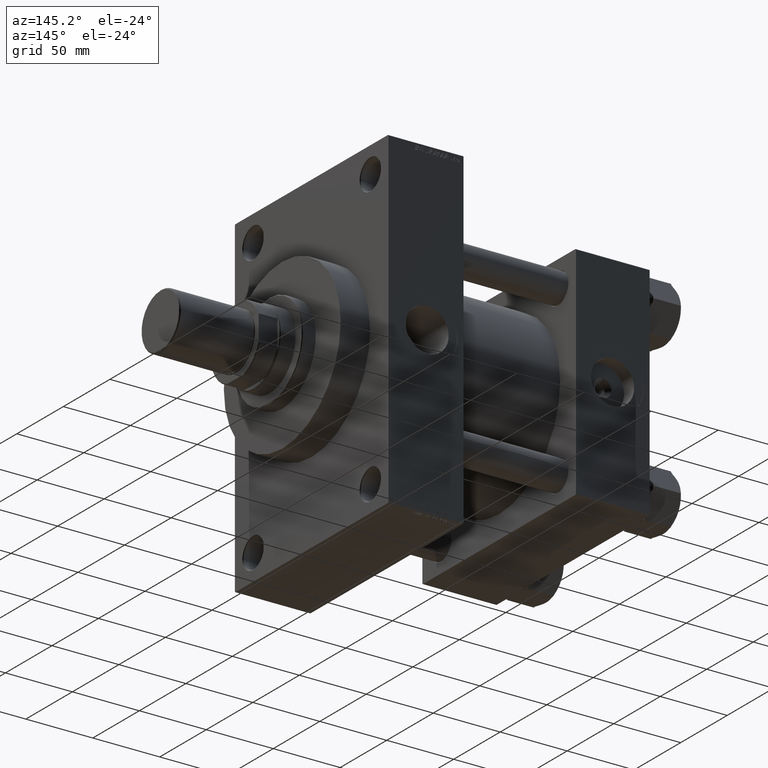
[diagram: clean part render]
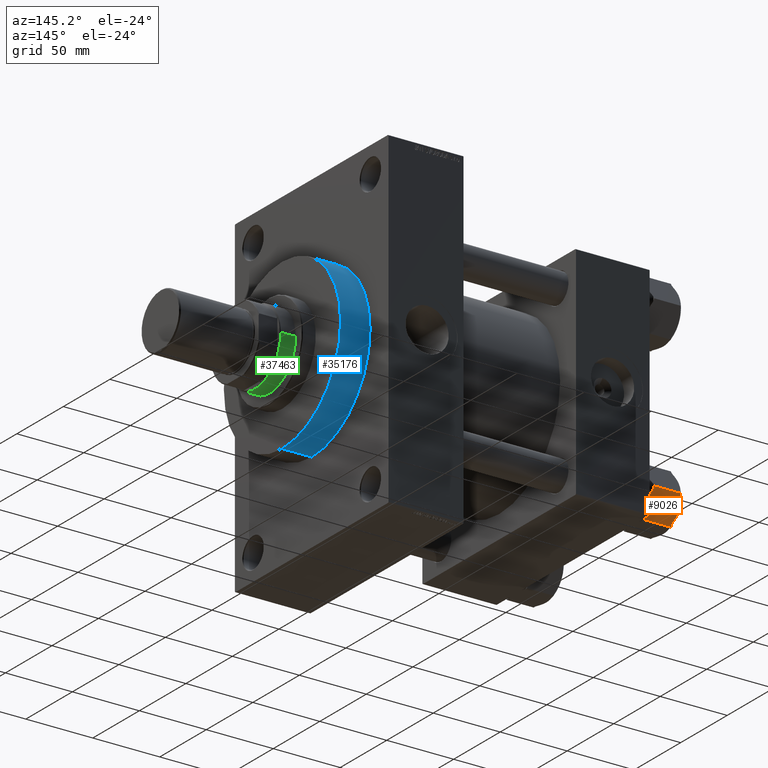
[diagram: same view with three faces highlighted in distinct colors, each labeled with its STEP entity id]
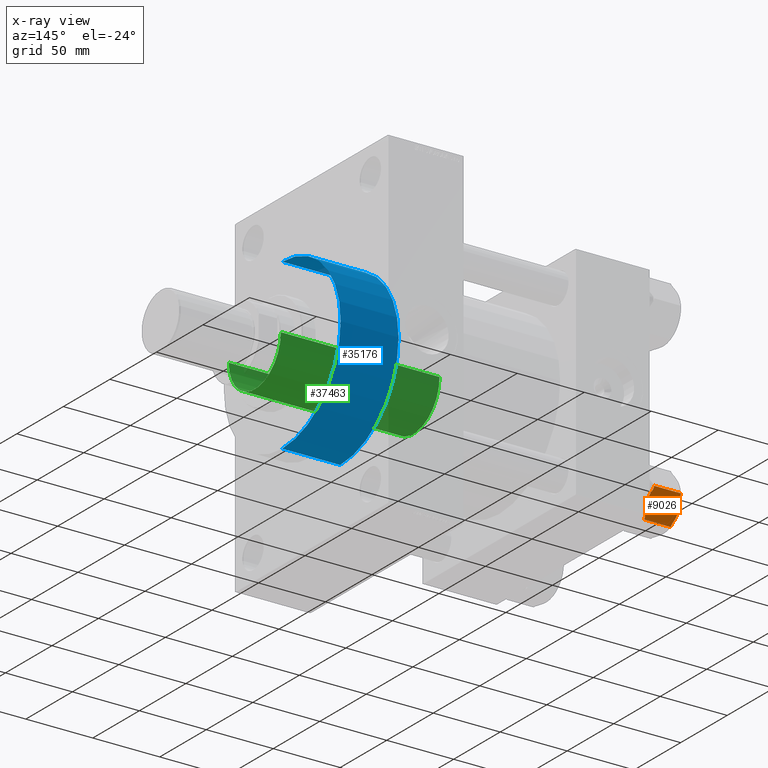
[diagram: x-ray of the same camera — body ghosted, the three highlighted faces saturated]
A machine part, auxiliary view with three faces highlighted in distinct colors.
The next image is the same camera in x-ray (body ghosted, the three faces saturated) — at least one of them is partly hidden behind the body in this view.
Their STEP definitions:

[orange] entity #9026 — the highlighted planar face has unit normal (0, -0.866, 0.5).
#108 = LINE ( 'NONE', #26902, #5487 ) ;
#292 = CARTESIAN_POINT ( 'NONE',  ( -10.81000000000000227, -18.72346922981957107, -24.00000000000000000 ) ) ;
#442 = VECTOR ( 'NONE', #10970, 1000.000000000000114 ) ;
#1464 = DIRECTION ( 'NONE',  ( -0.4999999999999993894, 0.8660254037844389297, 0.000000000000000000 ) ) ;
#1742 = CARTESIAN_POINT ( 'NONE',  ( -20.65611126068912640, -1.669504269329924240, -22.00000000000000000 ) ) ;
#2613 = CARTESIAN_POINT ( 'NONE',  ( -12.48121638205395278, -15.82883754566067758, -22.60633105863623271 ) ) ;
#3565 = ORIENTED_EDGE ( 'NONE', *, *, #27225, .F. ) ;
#3594 = CARTESIAN_POINT ( 'NONE',  ( -17.74616263960890805, -6.709683128455873558, -0.2338220771833849909 ) ) ;
#4495 = CARTESIAN_POINT ( 'NONE',  ( -10.81000000000000227, -18.72346922981957107, -22.00000000000000000 ) ) ;
#5415 = CARTESIAN_POINT ( 'NONE',  ( -18.84657086838734230, -4.803720167144733821, -23.28765129395944555 ) ) ;
#5487 = VECTOR ( 'NONE', #41733, 1000.000000000000114 ) ;
#5626 = ORIENTED_EDGE ( 'NONE', *, *, #43275, .F. ) ;
#5758 = DIRECTION ( 'NONE',  ( 0.4999999999999993894, -0.8660254037844389297, 0.000000000000000000 ) ) ;
#7366 = LINE ( 'NONE', #44850, #12286 ) ;
#7993 = CARTESIAN_POINT ( 'NONE',  ( -19.94878361794604515, -2.894631684158861074, -1.393668941363769287 ) ) ;
#8723 = VERTEX_POINT ( 'NONE', #8862 ) ;
#8844 = ORIENTED_EDGE ( 'NONE', *, *, #13370, .F. ) ;
#8862 = CARTESIAN_POINT ( 'NONE',  ( -21.62000000000000099, 1.669698520835173435E-14, -22.00000000000000000 ) ) ;
#8936 = EDGE_CURVE ( 'NONE', #46363, #19273, #7366, .T. ) ;
#9026 = ADVANCED_FACE ( 'NONE', ( #18818 ), #33662, .F. ) ;
#9312 = LINE ( 'NONE', #24163, #15017 ) ;
#9824 = B_SPLINE_CURVE_WITH_KNOTS ( 'NONE', 3,
 ( #27583, #38781, #42419, #5415, #20283, #35121, #16870, #1742 ),
 .UNSPECIFIED., .F., .F.,
 ( 4, 2, 2, 4 ),
 ( 0.009109849294687067875, 0.01366157320126715896, 0.01593743515455720017, 0.01821329710784724484 ),
 .UNSPECIFIED. ) ;
#9945 = CARTESIAN_POINT ( 'NONE',  ( -15.25296234352182978, -11.02803271472447477, -23.90516550165011012 ) ) ;
#10177 = ORIENTED_EDGE ( 'NONE', *, *, #8936, .T. ) ;
#10970 = DIRECTION ( 'NONE',  ( -0.4999999999999993894, 0.8660254037844389297, 0.000000000000000000 ) ) ;
#11123 = EDGE_CURVE ( 'NONE', #43131, #33831, #37033, .T. ) ;
#11131 = CARTESIAN_POINT ( 'NONE',  ( -16.21500000000001762, -9.361734614909776653, 0.000000000000000000 ) ) ;
#11614 = CARTESIAN_POINT ( 'NONE',  ( -11.77388873931088220, -17.05396496048960842, -2.000000000000000000 ) ) ;
#12174 = B_SPLINE_CURVE_WITH_KNOTS ( 'NONE', 3,
 ( #41099, #7993, #18712, #14805, #3594, #18473, #15769, #29672, #37697, #44501 ),
 .UNSPECIFIED., .F., .F.,
 ( 4, 2, 2, 2, 4 ),
 ( 5.007809737585758646E-07, 0.004555175037830412263, 0.006832512166258740936, 0.007971180730472903972, 0.009109849294687066140 ),
 .UNSPECIFIED. ) ;
#12286 = VECTOR ( 'NONE', #44123, 1000.000000000000000 ) ;
#13370 = EDGE_CURVE ( 'NONE', #46363, #32929, #25289, .T. ) ;
#14322 = CARTESIAN_POINT ( 'NONE',  ( -14.68383736039110588, -12.01378610136366376, -23.76617792281661323 ) ) ;
#14384 = ORIENTED_EDGE ( 'NONE', *, *, #43395, .F. ) ;
#14805 = CARTESIAN_POINT ( 'NONE',  ( -18.12021770021052802, -6.061800758665592426, -0.3703068632035558805 ) ) ;
#15017 = VECTOR ( 'NONE', #39002, 1000.000000000000000 ) ;
#15137 = B_SPLINE_CURVE_WITH_KNOTS ( 'NONE', 3,
 ( #28934, #2613, #47182, #32092, #14322, #9945, #47669, #35742, #25520, #28446 ),
 .UNSPECIFIED., .F., .F.,
 ( 4, 2, 2, 2, 4 ),
 ( 5.007809737492852896E-07, 0.004555175037830406191, 0.006832512166258735732, 0.007971180730472900502, 0.009109849294687067875 ),
 .UNSPECIFIED. ) ;
#15158 = DIRECTION ( 'NONE',  ( 0.8660254037844390407, 0.4999999999999994449, 0.000000000000000000 ) ) ;
#15507 = CARTESIAN_POINT ( 'NONE',  ( -15.44689116237993076, -10.69213814741041624, 1.408785197873352008E-14 ) ) ;
#15769 = CARTESIAN_POINT ( 'NONE',  ( -16.98598932500589598, -8.026341931906348037, -0.05945867712355460549 ) ) ;
#15929 = EDGE_CURVE ( 'NONE', #32613, #47767, #108, .T. ) ;
#16870 = CARTESIAN_POINT ( 'NONE',  ( -20.30204076991168449, -2.282772348817309283, -22.30351413196914123 ) ) ;
#17569 = EDGE_CURVE ( 'NONE', #47767, #43131, #12174, .T. ) ;
#18473 = CARTESIAN_POINT ( 'NONE',  ( -17.17703765647818770, -7.695436515095067875, -0.09483449834988089133 ) ) ;
#18712 = CARTESIAN_POINT ( 'NONE',  ( -19.22845374672207441, -4.142279619328344431, -0.8936198542777825660 ) ) ;
#18818 = FACE_OUTER_BOUND ( 'NONE', #41136, .T. ) ;
#19273 = VERTEX_POINT ( 'NONE', #27188 ) ;
#19723 = VERTEX_POINT ( 'NONE', #27722 ) ;
#20283 = CARTESIAN_POINT ( 'NONE',  ( -19.21365948880452379, -4.167904025701819393, -23.07491496110390372 ) ) ;
#20764 = ORIENTED_EDGE ( 'NONE', *, *, #33716, .F. ) ;
#22987 = CARTESIAN_POINT ( 'NONE',  ( -21.62000000000000099, 1.669698520835173435E-14, -2.000000000000001776 ) ) ;
#24014 = ORIENTED_EDGE ( 'NONE', *, *, #42778, .F. ) ;
#24111 = CARTESIAN_POINT ( 'NONE',  ( -10.81000000000000227, -18.72346922981957107, -22.00000000000000000 ) ) ;
#24163 = CARTESIAN_POINT ( 'NONE',  ( -21.62000000000000099, 1.669698520835173435E-14, -24.00000000000000000 ) ) ;
#24527 = CARTESIAN_POINT ( 'NONE',  ( -10.81000000000000227, -18.72346922981957107, -2.000000000000001776 ) ) ;
#25011 = VERTEX_POINT ( 'NONE', #35209 ) ;
#25289 = LINE ( 'NONE', #4495, #27196 ) ;
#25520 = CARTESIAN_POINT ( 'NONE',  ( -16.02284832181305418, -9.694551084289209086, -24.00000000000001776 ) ) ;
#26880 = VECTOR ( 'NONE', #5758, 1000.000000000000114 ) ;
#26902 = CARTESIAN_POINT ( 'NONE',  ( -10.81000000000000227, -18.72346922981957107, -2.000000000000001776 ) ) ;
#27188 = CARTESIAN_POINT ( 'NONE',  ( -10.81000000000000227, -18.72346922981957107, -2.000000000000001776 ) ) ;
#27196 = VECTOR ( 'NONE', #44923, 1000.000000000000114 ) ;
#27225 = EDGE_CURVE ( 'NONE', #19723, #25011, #9824, .T. ) ;
#27583 = CARTESIAN_POINT ( 'NONE',  ( -16.21500000000001762, -9.361734614909776653, -24.00000000000000000 ) ) ;
#27722 = CARTESIAN_POINT ( 'NONE',  ( -16.21500000000001762, -9.361734614909776653, -24.00000000000000000 ) ) ;
#28446 = CARTESIAN_POINT ( 'NONE',  ( -16.21500000000001762, -9.361734614909776653, -24.00000000000000000 ) ) ;
#28530 = CARTESIAN_POINT ( 'NONE',  ( -11.77388873931088220, -17.05396496048960842, -2.000000000000000000 ) ) ;
#28934 = CARTESIAN_POINT ( 'NONE',  ( -11.77388873931088042, -17.05396496048961552, -22.00000000000000000 ) ) ;
#29672 = CARTESIAN_POINT ( 'NONE',  ( -16.60104632518793011, -8.693082765609036144, -0.01197337667081199535 ) ) ;
#30121 = CARTESIAN_POINT ( 'NONE',  ( -20.65611126068912284, -1.669504269329930457, -2.000000000000000000 ) ) ;
#30124 = CARTESIAN_POINT ( 'NONE',  ( -13.58342913161266807, -13.91974906267480350, -0.7123487060405448990 ) ) ;
#30362 = CARTESIAN_POINT ( 'NONE',  ( -13.21634051119548836, -14.55556520411771970, -0.9250850388960920601 ) ) ;
#32092 = CARTESIAN_POINT ( 'NONE',  ( -14.30978229978947525, -12.66166847115395022, -23.62969313679645111 ) ) ;
#32613 = VERTEX_POINT ( 'NONE', #22987 ) ;
#32882 = CARTESIAN_POINT ( 'NONE',  ( -10.81000000000000227, -18.72346922981957107, -22.00000000000000000 ) ) ;
#32929 = VERTEX_POINT ( 'NONE', #37934 ) ;
#33662 = PLANE ( 'NONE',  #34086 ) ;
#33716 = EDGE_CURVE ( 'NONE', #8723, #32613, #9312, .T. ) ;
#33831 = VERTEX_POINT ( 'NONE', #28530 ) ;
#34086 = AXIS2_PLACEMENT_3D ( 'NONE', #292, #15158, #1464 ) ;
#35121 = CARTESIAN_POINT ( 'NONE',  ( -19.94246781890516118, -2.905570968988080871, -22.58212083167677520 ) ) ;
#35209 = CARTESIAN_POINT ( 'NONE',  ( -20.65611126068912640, -1.669504269329924240, -22.00000000000000000 ) ) ;
#35417 = ORIENTED_EDGE ( 'NONE', *, *, #11123, .F. ) ;
#35742 = CARTESIAN_POINT ( 'NONE',  ( -15.82895367481208737, -10.03038646421051006, -23.98802662332919766 ) ) ;
#36614 = CARTESIAN_POINT ( 'NONE',  ( -16.21500000000001762, -9.361734614909776653, 0.000000000000000000 ) ) ;
#37033 = B_SPLINE_CURVE_WITH_KNOTS ( 'NONE', 3,
 ( #11131, #15507, #44959, #30124, #30362, #41549, #44718, #11614 ),
 .UNSPECIFIED., .F., .F.,
 ( 4, 2, 2, 4 ),
 ( 0.009109849294687066140, 0.01366157320126715896, 0.01593743515455720364, 0.01821329710784724484 ),
 .UNSPECIFIED. ) ;
#37697 = CARTESIAN_POINT ( 'NONE',  ( -16.40715167818697040, -9.028918145530337114, 1.384475352287154220E-14 ) ) ;
#37934 = CARTESIAN_POINT ( 'NONE',  ( -11.77388873931088042, -17.05396496048961552, -22.00000000000000000 ) ) ;
#38238 = LINE ( 'NONE', #24527, #26880 ) ;
#38486 = ORIENTED_EDGE ( 'NONE', *, *, #15929, .F. ) ;
#38781 = CARTESIAN_POINT ( 'NONE',  ( -16.98310883762008316, -8.031331082409121080, -24.00000000000002132 ) ) ;
#39002 = DIRECTION ( 'NONE',  ( -0.000000000000000000, -0.000000000000000000, 1.000000000000000000 ) ) ;
#41099 = CARTESIAN_POINT ( 'NONE',  ( -20.65611126068912284, -1.669504269329930457, -2.000000000000000000 ) ) ;
#41136 = EDGE_LOOP ( 'NONE', ( #8844, #10177, #24014, #35417, #41944, #38486, #20764, #5626, #3565, #14384 ) ) ;
#41549 = CARTESIAN_POINT ( 'NONE',  ( -12.48753218109485275, -15.81789826083145378, -1.417879168323221251 ) ) ;
#41733 = DIRECTION ( 'NONE',  ( 0.4999999999999993894, -0.8660254037844389297, 0.000000000000000000 ) ) ;
#41944 = ORIENTED_EDGE ( 'NONE', *, *, #17569, .F. ) ;
#42419 = CARTESIAN_POINT ( 'NONE',  ( -17.73599980468854653, -6.727285674886865685, -23.80918115964521675 ) ) ;
#42778 = EDGE_CURVE ( 'NONE', #33831, #19273, #38238, .T. ) ;
#43131 = VERTEX_POINT ( 'NONE', #36614 ) ;
#43275 = EDGE_CURVE ( 'NONE', #25011, #8723, #44311, .T. ) ;
#43395 = EDGE_CURVE ( 'NONE', #32929, #19723, #15137, .T. ) ;
#44123 = DIRECTION ( 'NONE',  ( -0.000000000000000000, -0.000000000000000000, 1.000000000000000000 ) ) ;
#44311 = LINE ( 'NONE', #32882, #442 ) ;
#44501 = CARTESIAN_POINT ( 'NONE',  ( -16.21500000000001762, -9.361734614909776653, 0.000000000000000000 ) ) ;
#44718 = CARTESIAN_POINT ( 'NONE',  ( -12.12795923008832943, -16.44069688100223203, -1.696485868030861432 ) ) ;
#44850 = CARTESIAN_POINT ( 'NONE',  ( -10.81000000000000227, -18.72346922981957107, -24.00000000000000000 ) ) ;
#44923 = DIRECTION ( 'NONE',  ( -0.4999999999999993894, 0.8660254037844389297, 0.000000000000000000 ) ) ;
#44959 = CARTESIAN_POINT ( 'NONE',  ( -14.69400019531146029, -11.99618355493266897, -0.1908188403547822765 ) ) ;
#46363 = VERTEX_POINT ( 'NONE', #24111 ) ;
#47182 = CARTESIAN_POINT ( 'NONE',  ( -13.20154625327793418, -14.58118961049120266, -23.10638014572221977 ) ) ;
#47669 = CARTESIAN_POINT ( 'NONE',  ( -15.44401067499412505, -10.69712729791319283, -23.94054132287644876 ) ) ;
#47767 = VERTEX_POINT ( 'NONE', #30121 ) ;

[blue] entity #35176 — the highlighted cylindrical surface (partial cylindrical patch) has radius 62.75 mm, axis along (-1, 0, 0).
#24 = VERTEX_POINT ( 'NONE', #18507 ) ;
#617 = ORIENTED_EDGE ( 'NONE', *, *, #42665, .T. ) ;
#741 = CARTESIAN_POINT ( 'NONE',  ( 62.75000000000000000, 7.684658664649641591E-15, 0.000000000000000000 ) ) ;
#1953 = DIRECTION ( 'NONE',  ( -1.000000000000000000, 0.000000000000000000, 0.000000000000000000 ) ) ;
#4390 = CARTESIAN_POINT ( 'NONE',  ( -62.75000000000000000, 0.000000000000000000, 43.25999999999999801 ) ) ;
#6903 = DIRECTION ( 'NONE',  ( 0.000000000000000000, 0.000000000000000000, 1.000000000000000000 ) ) ;
#9000 = VECTOR ( 'NONE', #19261, 1000.000000000000000 ) ;
#9027 = LINE ( 'NONE', #39199, #18942 ) ;
#9149 = CIRCLE ( 'NONE', #30164, 62.75000000000000000 ) ;
#9302 = CARTESIAN_POINT ( 'NONE',  ( 0.000000000000000000, 0.000000000000000000, 43.25999999999999801 ) ) ;
#13514 = AXIS2_PLACEMENT_3D ( 'NONE', #9302, #24154, #1953 ) ;
#14859 = VERTEX_POINT ( 'NONE', #741 ) ;
#15087 = CIRCLE ( 'NONE', #42284, 62.75000000000000000 ) ;
#16237 = ORIENTED_EDGE ( 'NONE', *, *, #27624, .F. ) ;
#17955 = ORIENTED_EDGE ( 'NONE', *, *, #36043, .F. ) ;
#18507 = CARTESIAN_POINT ( 'NONE',  ( -62.75000000000000000, 0.000000000000000000, 0.000000000000000000 ) ) ;
#18942 = VECTOR ( 'NONE', #20225, 1000.000000000000000 ) ;
#19261 = DIRECTION ( 'NONE',  ( -0.000000000000000000, -0.000000000000000000, -1.000000000000000000 ) ) ;
#20225 = DIRECTION ( 'NONE',  ( -0.000000000000000000, -0.000000000000000000, -1.000000000000000000 ) ) ;
#22712 = ORIENTED_EDGE ( 'NONE', *, *, #45638, .T. ) ;
#22941 = LINE ( 'NONE', #4390, #9000 ) ;
#24154 = DIRECTION ( 'NONE',  ( -0.000000000000000000, -0.000000000000000000, -1.000000000000000000 ) ) ;
#27624 = EDGE_CURVE ( 'NONE', #40954, #14859, #9027, .T. ) ;
#27793 = FACE_OUTER_BOUND ( 'NONE', #28132, .T. ) ;
#28132 = EDGE_LOOP ( 'NONE', ( #16237, #17955, #617, #22712 ) ) ;
#30164 = AXIS2_PLACEMENT_3D ( 'NONE', #40267, #6903, #43666 ) ;
#35176 = ADVANCED_FACE ( 'NONE', ( #27793 ), #42630, .T. ) ;
#35817 = CARTESIAN_POINT ( 'NONE',  ( 0.000000000000000000, 0.000000000000000000, 43.25999999999999801 ) ) ;
#36043 = EDGE_CURVE ( 'NONE', #38948, #40954, #15087, .T. ) ;
#37965 = CARTESIAN_POINT ( 'NONE',  ( -62.75000000000000000, 0.000000000000000000, 43.25999999999999801 ) ) ;
#38948 = VERTEX_POINT ( 'NONE', #37965 ) ;
#39199 = CARTESIAN_POINT ( 'NONE',  ( 62.75000000000000000, 7.684658664649641591E-15, 43.25999999999999801 ) ) ;
#40267 = CARTESIAN_POINT ( 'NONE',  ( 0.000000000000000000, 0.000000000000000000, 0.000000000000000000 ) ) ;
#40954 = VERTEX_POINT ( 'NONE', #46645 ) ;
#42284 = AXIS2_PLACEMENT_3D ( 'NONE', #35817, #43119, #46535 ) ;
#42630 = CYLINDRICAL_SURFACE ( 'NONE', #13514, 62.75000000000000000 ) ;
#42665 = EDGE_CURVE ( 'NONE', #38948, #24, #22941, .T. ) ;
#43119 = DIRECTION ( 'NONE',  ( 0.000000000000000000, 0.000000000000000000, 1.000000000000000000 ) ) ;
#43666 = DIRECTION ( 'NONE',  ( 1.000000000000000000, 0.000000000000000000, 0.000000000000000000 ) ) ;
#45638 = EDGE_CURVE ( 'NONE', #24, #14859, #9149, .T. ) ;
#46535 = DIRECTION ( 'NONE',  ( 1.000000000000000000, 0.000000000000000000, 0.000000000000000000 ) ) ;
#46645 = CARTESIAN_POINT ( 'NONE',  ( 62.75000000000000000, 7.684658664649641591E-15, 43.25999999999999801 ) ) ;

[green] entity #37463 — the highlighted cylindrical surface (partial cylindrical patch) has radius 28 mm, axis along (-1, 0, 0).
#34 = VERTEX_POINT ( 'NONE', #29222 ) ;
#918 = ORIENTED_EDGE ( 'NONE', *, *, #41052, .T. ) ;
#1176 = CARTESIAN_POINT ( 'NONE',  ( 0.000000000000000000, 0.000000000000000000, 64.00000000000000000 ) ) ;
#1232 = LINE ( 'NONE', #30956, #27064 ) ;
#1299 = DIRECTION ( 'NONE',  ( -0.000000000000000000, -0.000000000000000000, -1.000000000000000000 ) ) ;
#1772 = FACE_OUTER_BOUND ( 'NONE', #47267, .T. ) ;
#3546 = ORIENTED_EDGE ( 'NONE', *, *, #27294, .T. ) ;
#3891 = AXIS2_PLACEMENT_3D ( 'NONE', #32438, #29036, #25140 ) ;
#7028 = CIRCLE ( 'NONE', #3891, 28.00000000000000000 ) ;
#7615 = CARTESIAN_POINT ( 'NONE',  ( -28.00000000000000000, 0.000000000000000000, 182.4999999999999716 ) ) ;
#9155 = EDGE_CURVE ( 'NONE', #16391, #25914, #1232, .T. ) ;
#15494 = CARTESIAN_POINT ( 'NONE',  ( -28.00000000000000000, 0.000000000000000000, 64.00000000000000000 ) ) ;
#16391 = VERTEX_POINT ( 'NONE', #7615 ) ;
#16868 = VERTEX_POINT ( 'NONE', #19124 ) ;
#19124 = CARTESIAN_POINT ( 'NONE',  ( 28.00000000000000000, 3.429011037612589276E-15, 64.00000000000000000 ) ) ;
#19939 = DIRECTION ( 'NONE',  ( 0.000000000000000000, 0.000000000000000000, 1.000000000000000000 ) ) ;
#21031 = CYLINDRICAL_SURFACE ( 'NONE', #43007, 28.00000000000000000 ) ;
#25140 = DIRECTION ( 'NONE',  ( 1.000000000000000000, 0.000000000000000000, 0.000000000000000000 ) ) ;
#25914 = VERTEX_POINT ( 'NONE', #15494 ) ;
#27064 = VECTOR ( 'NONE', #45792, 1000.000000000000000 ) ;
#27294 = EDGE_CURVE ( 'NONE', #16391, #34, #7028, .T. ) ;
#27667 = DIRECTION ( 'NONE',  ( -0.000000000000000000, -0.000000000000000000, -1.000000000000000000 ) ) ;
#27907 = LINE ( 'NONE', #46882, #37686 ) ;
#29036 = DIRECTION ( 'NONE',  ( 0.000000000000000000, 0.000000000000000000, -1.000000000000000000 ) ) ;
#29094 = CIRCLE ( 'NONE', #31410, 28.00000000000000000 ) ;
#29222 = CARTESIAN_POINT ( 'NONE',  ( 28.00000000000000000, 3.429011037612589276E-15, 182.4999999999999716 ) ) ;
#30956 = CARTESIAN_POINT ( 'NONE',  ( -28.00000000000000000, 0.000000000000000000, 183.0000000000000000 ) ) ;
#31410 = AXIS2_PLACEMENT_3D ( 'NONE', #1176, #19939, #45972 ) ;
#31498 = CARTESIAN_POINT ( 'NONE',  ( 0.000000000000000000, 0.000000000000000000, 183.0000000000000000 ) ) ;
#32438 = CARTESIAN_POINT ( 'NONE',  ( 0.000000000000000000, 0.000000000000000000, 182.4999999999999716 ) ) ;
#34494 = ORIENTED_EDGE ( 'NONE', *, *, #9155, .F. ) ;
#37463 = ADVANCED_FACE ( 'NONE', ( #1772 ), #21031, .T. ) ;
#37686 = VECTOR ( 'NONE', #27667, 1000.000000000000000 ) ;
#39827 = EDGE_CURVE ( 'NONE', #16868, #25914, #29094, .T. ) ;
#41052 = EDGE_CURVE ( 'NONE', #34, #16868, #27907, .T. ) ;
#43007 = AXIS2_PLACEMENT_3D ( 'NONE', #31498, #1299, #46338 ) ;
#45071 = ORIENTED_EDGE ( 'NONE', *, *, #39827, .T. ) ;
#45792 = DIRECTION ( 'NONE',  ( -0.000000000000000000, -0.000000000000000000, -1.000000000000000000 ) ) ;
#45972 = DIRECTION ( 'NONE',  ( 1.000000000000000000, 0.000000000000000000, 0.000000000000000000 ) ) ;
#46338 = DIRECTION ( 'NONE',  ( -1.000000000000000000, 0.000000000000000000, 0.000000000000000000 ) ) ;
#46882 = CARTESIAN_POINT ( 'NONE',  ( 28.00000000000000000, 3.429011037612589276E-15, 183.0000000000000000 ) ) ;
#47267 = EDGE_LOOP ( 'NONE', ( #3546, #918, #45071, #34494 ) ) ;